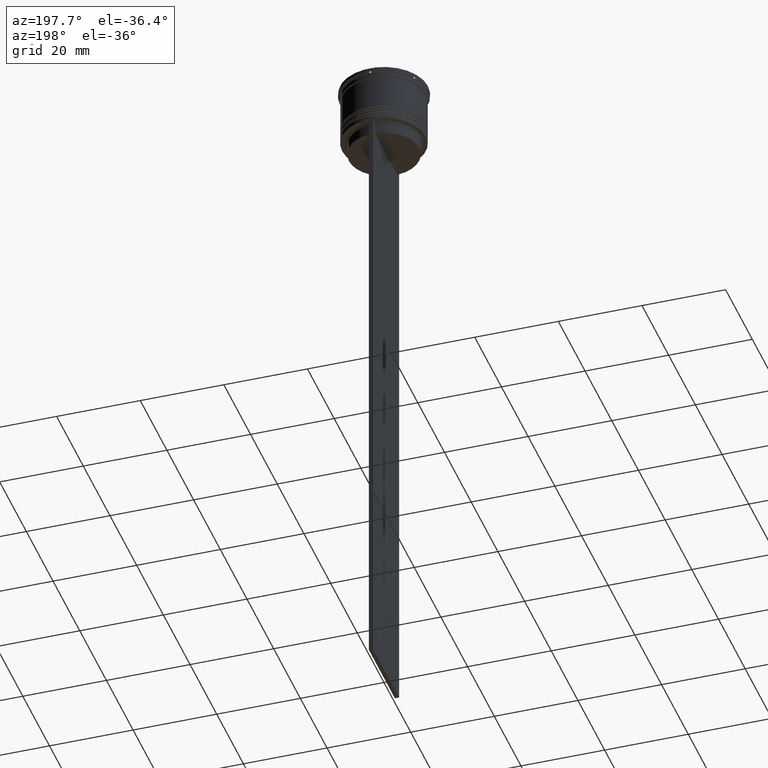
[diagram: clean part render]
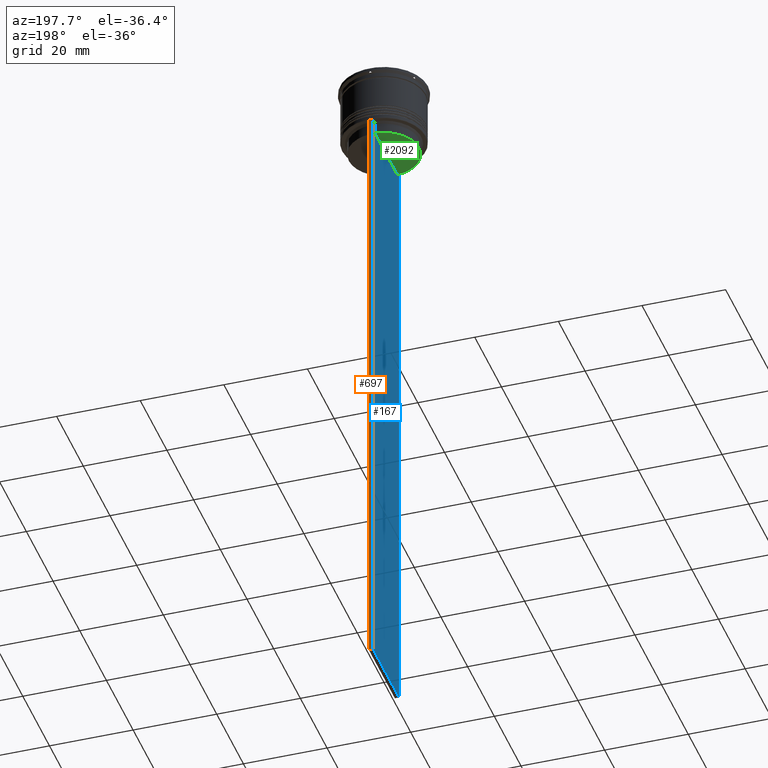
[diagram: same view with three faces highlighted in distinct colors, each labeled with its STEP entity id]
A machine part, auxiliary view with three faces highlighted in distinct colors.
Their STEP definitions:

[orange] entity #697 — the highlighted planar face has unit normal (0, -1, -0).
#35 = ORIENTED_EDGE ( 'NONE', *, *, #214, .F. ) ;
#86 = CARTESIAN_POINT ( 'NONE',  ( -0.5000000000000001110, 9.750000000000001776, -163.9999999999999716 ) ) ;
#169 = DIRECTION ( 'NONE',  ( 0.000000000000000000, 0.000000000000000000, -1.000000000000000000 ) ) ;
#192 = PLANE ( 'NONE',  #1936 ) ;
#207 = CARTESIAN_POINT ( 'NONE',  ( 0.4999999999999998890, 9.750000000000001776, -14.00000000000000178 ) ) ;
#211 = EDGE_CURVE ( 'NONE', #995, #1330, #264, .T. ) ;
#214 = EDGE_CURVE ( 'NONE', #995, #586, #1469, .T. ) ;
#221 = DIRECTION ( 'NONE',  ( -1.000000000000000000, 0.000000000000000000, 0.000000000000000000 ) ) ;
#264 = LINE ( 'NONE', #1261, #640 ) ;
#386 = ORIENTED_EDGE ( 'NONE', *, *, #940, .T. ) ;
#393 = CARTESIAN_POINT ( 'NONE',  ( 0.4999999999999998890, 9.750000000000001776, 5.525624189766635830 ) ) ;
#452 = EDGE_CURVE ( 'NONE', #1330, #1167, #1807, .T. ) ;
#586 = VERTEX_POINT ( 'NONE', #86 ) ;
#640 = VECTOR ( 'NONE', #1495, 1000.000000000000000 ) ;
#697 = ADVANCED_FACE ( 'NONE', ( #796 ), #192, .F. ) ;
#748 = CARTESIAN_POINT ( 'NONE',  ( 0.4999999999999998890, 9.750000000000001776, 5.525624189766635830 ) ) ;
#768 = VECTOR ( 'NONE', #1666, 1000.000000000000000 ) ;
#796 = FACE_OUTER_BOUND ( 'NONE', #1284, .T. ) ;
#835 = CARTESIAN_POINT ( 'NONE',  ( -0.5000000000000001110, 9.750000000000001776, 5.525624189766635830 ) ) ;
#853 = LINE ( 'NONE', #1202, #1044 ) ;
#940 = EDGE_CURVE ( 'NONE', #1167, #586, #853, .T. ) ;
#995 = VERTEX_POINT ( 'NONE', #2471 ) ;
#997 = DIRECTION ( 'NONE',  ( 0.000000000000000000, 0.000000000000000000, -1.000000000000000000 ) ) ;
#1044 = VECTOR ( 'NONE', #221, 1000.000000000000000 ) ;
#1124 = CARTESIAN_POINT ( 'NONE',  ( 0.4999999999999998890, 9.750000000000001776, -163.9999999999999716 ) ) ;
#1167 = VERTEX_POINT ( 'NONE', #1124 ) ;
#1202 = CARTESIAN_POINT ( 'NONE',  ( 0.4999999999999998890, 9.750000000000001776, -163.9999999999999716 ) ) ;
#1225 = VECTOR ( 'NONE', #997, 1000.000000000000000 ) ;
#1261 = CARTESIAN_POINT ( 'NONE',  ( 0.4999999999999998890, 9.750000000000001776, -14.00000000000000178 ) ) ;
#1284 = EDGE_LOOP ( 'NONE', ( #35, #2117, #1690, #386 ) ) ;
#1330 = VERTEX_POINT ( 'NONE', #207 ) ;
#1469 = LINE ( 'NONE', #835, #768 ) ;
#1495 = DIRECTION ( 'NONE',  ( 1.000000000000000000, 0.000000000000000000, 0.000000000000000000 ) ) ;
#1666 = DIRECTION ( 'NONE',  ( 0.000000000000000000, 0.000000000000000000, -1.000000000000000000 ) ) ;
#1690 = ORIENTED_EDGE ( 'NONE', *, *, #452, .T. ) ;
#1788 = DIRECTION ( 'NONE',  ( 0.000000000000000000, -1.000000000000000000, -0.000000000000000000 ) ) ;
#1807 = LINE ( 'NONE', #393, #1225 ) ;
#1936 = AXIS2_PLACEMENT_3D ( 'NONE', #748, #1788, #169 ) ;
#2117 = ORIENTED_EDGE ( 'NONE', *, *, #211, .T. ) ;
#2471 = CARTESIAN_POINT ( 'NONE',  ( -0.5000000000000001110, 9.749999999999998224, -14.00000000000000178 ) ) ;

[blue] entity #167 — the highlighted planar face has unit normal (-1, 0, 0).
#26 = DIRECTION ( 'NONE',  ( 0.000000000000000000, -1.000000000000000000, 0.000000000000000000 ) ) ;
#86 = CARTESIAN_POINT ( 'NONE',  ( -0.5000000000000001110, 9.750000000000001776, -163.9999999999999716 ) ) ;
#130 = CARTESIAN_POINT ( 'NONE',  ( -0.5000000000000001110, -9.749999999999998224, -14.00000000000000178 ) ) ;
#133 = CARTESIAN_POINT ( 'NONE',  ( -0.5000000000000001110, -8.552060194457773434, -14.33334167772667023 ) ) ;
#141 = B_SPLINE_CURVE_WITH_KNOTS ( 'NONE', 3,
 ( #1728, #133, #911, #1928 ),
 .UNSPECIFIED., .F., .F.,
 ( 4, 4 ),
 ( 0.03898465126933130243, 0.03969388910599658260 ),
 .UNSPECIFIED. ) ;
#167 = ADVANCED_FACE ( 'NONE', ( #1630 ), #1451, .T. ) ;
#196 = VECTOR ( 'NONE', #1877, 1000.000000000000000 ) ;
#214 = EDGE_CURVE ( 'NONE', #995, #586, #1469, .T. ) ;
#254 = CARTESIAN_POINT ( 'NONE',  ( -0.5000000000000001110, -9.749999999999998224, -163.9999999999999716 ) ) ;
#277 = ORIENTED_EDGE ( 'NONE', *, *, #1599, .F. ) ;
#282 = VECTOR ( 'NONE', #833, 1000.000000000000000 ) ;
#296 = EDGE_CURVE ( 'NONE', #1696, #586, #2172, .T. ) ;
#332 = B_SPLINE_CURVE_WITH_KNOTS ( 'NONE', 3,
 ( #950, #939, #387, #2539 ),
 .UNSPECIFIED., .F., .F.,
 ( 4, 4 ),
 ( 0.01511546479386908018, 0.01582316445439079997 ),
 .UNSPECIFIED. ) ;
#337 = EDGE_CURVE ( 'NONE', #1840, #2020, #1109, .T. ) ;
#387 = CARTESIAN_POINT ( 'NONE',  ( -0.5000000000000001110, 8.552060201981381837, -14.33334167021640226 ) ) ;
#501 = CARTESIAN_POINT ( 'NONE',  ( -0.5000000000000001110, -8.385105843100616241, -17.00000000000000000 ) ) ;
#523 = ORIENTED_EDGE ( 'NONE', *, *, #214, .T. ) ;
#570 = LINE ( 'NONE', #1117, #2530 ) ;
#586 = VERTEX_POINT ( 'NONE', #86 ) ;
#598 = CARTESIAN_POINT ( 'NONE',  ( -0.5000000000000001110, 8.400000000000003908, -17.00000000000000000 ) ) ;
#617 = DIRECTION ( 'NONE',  ( 0.000000000000000000, -1.000000000000000000, 0.000000000000000000 ) ) ;
#627 = ORIENTED_EDGE ( 'NONE', *, *, #1381, .F. ) ;
#671 = CARTESIAN_POINT ( 'NONE',  ( -0.5000000000000001110, -9.749999999999998224, 5.525624189766635830 ) ) ;
#768 = VECTOR ( 'NONE', #1666, 1000.000000000000000 ) ;
#784 = ORIENTED_EDGE ( 'NONE', *, *, #1660, .F. ) ;
#794 = LINE ( 'NONE', #598, #1316 ) ;
#823 = LINE ( 'NONE', #1619, #282 ) ;
#833 = DIRECTION ( 'NONE',  ( 0.000000000000000000, 0.000000000000000000, -1.000000000000000000 ) ) ;
#835 = CARTESIAN_POINT ( 'NONE',  ( -0.5000000000000001110, 9.750000000000001776, 5.525624189766635830 ) ) ;
#852 = ORIENTED_EDGE ( 'NONE', *, *, #1403, .F. ) ;
#885 = CARTESIAN_POINT ( 'NONE',  ( -0.5000000000000001110, -8.385105843100616241, 0.000000000000000000 ) ) ;
#911 = CARTESIAN_POINT ( 'NONE',  ( -0.5000000000000001110, -8.719005764482790966, -14.16667454151159689 ) ) ;
#922 = CARTESIAN_POINT ( 'NONE',  ( -0.5000000000000001110, -9.749999999999998224, -14.00000000000000178 ) ) ;
#935 = CARTESIAN_POINT ( 'NONE',  ( -0.5000000000000001110, -9.749999999999998224, -163.9999999999999716 ) ) ;
#939 = CARTESIAN_POINT ( 'NONE',  ( -0.5000000000000001110, 8.719005771582351016, -14.16667453442324742 ) ) ;
#943 = ORIENTED_EDGE ( 'NONE', *, *, #1218, .F. ) ;
#950 = CARTESIAN_POINT ( 'NONE',  ( -0.5000000000000001110, 8.885943956609230199, -14.00000000000000178 ) ) ;
#972 = CARTESIAN_POINT ( 'NONE',  ( -0.5000000000000001110, 8.385105843100616241, -17.00000000000000000 ) ) ;
#995 = VERTEX_POINT ( 'NONE', #2471 ) ;
#1086 = VECTOR ( 'NONE', #2549, 1000.000000000000000 ) ;
#1109 = LINE ( 'NONE', #922, #1629 ) ;
#1117 = CARTESIAN_POINT ( 'NONE',  ( -0.5000000000000001110, -9.749999999999998224, 5.525624189766635830 ) ) ;
#1143 = VERTEX_POINT ( 'NONE', #1972 ) ;
#1210 = ORIENTED_EDGE ( 'NONE', *, *, #1679, .F. ) ;
#1217 = LINE ( 'NONE', #1411, #2403 ) ;
#1218 = EDGE_CURVE ( 'NONE', #1754, #1244, #332, .T. ) ;
#1244 = VERTEX_POINT ( 'NONE', #2580 ) ;
#1316 = VECTOR ( 'NONE', #617, 1000.000000000000000 ) ;
#1381 = EDGE_CURVE ( 'NONE', #2184, #2348, #794, .T. ) ;
#1403 = EDGE_CURVE ( 'NONE', #2348, #1143, #2012, .T. ) ;
#1411 = CARTESIAN_POINT ( 'NONE',  ( -0.5000000000000001110, -9.749999999999998224, -14.00000000000000178 ) ) ;
#1451 = PLANE ( 'NONE',  #2477 ) ;
#1469 = LINE ( 'NONE', #835, #768 ) ;
#1599 = EDGE_CURVE ( 'NONE', #1143, #1840, #141, .T. ) ;
#1619 = CARTESIAN_POINT ( 'NONE',  ( -0.5000000000000001110, 8.385105843100616241, 0.000000000000000000 ) ) ;
#1629 = VECTOR ( 'NONE', #2349, 1000.000000000000000 ) ;
#1630 = FACE_OUTER_BOUND ( 'NONE', #2427, .T. ) ;
#1660 = EDGE_CURVE ( 'NONE', #1244, #2184, #823, .T. ) ;
#1666 = DIRECTION ( 'NONE',  ( 0.000000000000000000, 0.000000000000000000, -1.000000000000000000 ) ) ;
#1679 = EDGE_CURVE ( 'NONE', #995, #1754, #1217, .T. ) ;
#1696 = VERTEX_POINT ( 'NONE', #254 ) ;
#1728 = CARTESIAN_POINT ( 'NONE',  ( -0.5000000000000001110, -8.385105843100616241, -14.50000000000000000 ) ) ;
#1754 = VERTEX_POINT ( 'NONE', #1998 ) ;
#1831 = ORIENTED_EDGE ( 'NONE', *, *, #296, .F. ) ;
#1840 = VERTEX_POINT ( 'NONE', #1842 ) ;
#1842 = CARTESIAN_POINT ( 'NONE',  ( -0.5000000000000001110, -8.885943956609230199, -14.00000000000000178 ) ) ;
#1877 = DIRECTION ( 'NONE',  ( -0.000000000000000000, -0.000000000000000000, 1.000000000000000000 ) ) ;
#1925 = DIRECTION ( 'NONE',  ( 0.000000000000000000, 0.000000000000000000, -1.000000000000000000 ) ) ;
#1928 = CARTESIAN_POINT ( 'NONE',  ( -0.5000000000000001110, -8.885943956609230199, -14.00000000000000178 ) ) ;
#1972 = CARTESIAN_POINT ( 'NONE',  ( -0.5000000000000001110, -8.385105843100616241, -14.50000000000000000 ) ) ;
#1973 = EDGE_CURVE ( 'NONE', #2020, #1696, #570, .T. ) ;
#1998 = CARTESIAN_POINT ( 'NONE',  ( -0.5000000000000001110, 8.885943956609230199, -14.00000000000000178 ) ) ;
#2012 = LINE ( 'NONE', #885, #196 ) ;
#2020 = VERTEX_POINT ( 'NONE', #130 ) ;
#2172 = LINE ( 'NONE', #935, #1086 ) ;
#2184 = VERTEX_POINT ( 'NONE', #972 ) ;
#2212 = ORIENTED_EDGE ( 'NONE', *, *, #1973, .F. ) ;
#2282 = DIRECTION ( 'NONE',  ( -1.000000000000000000, 0.000000000000000000, 0.000000000000000000 ) ) ;
#2317 = ORIENTED_EDGE ( 'NONE', *, *, #337, .F. ) ;
#2348 = VERTEX_POINT ( 'NONE', #501 ) ;
#2349 = DIRECTION ( 'NONE',  ( 0.000000000000000000, -1.000000000000000000, 0.000000000000000000 ) ) ;
#2403 = VECTOR ( 'NONE', #26, 1000.000000000000000 ) ;
#2427 = EDGE_LOOP ( 'NONE', ( #943, #1210, #523, #1831, #2212, #2317, #277, #852, #627, #784 ) ) ;
#2446 = DIRECTION ( 'NONE',  ( 0.000000000000000000, 0.000000000000000000, 1.000000000000000000 ) ) ;
#2471 = CARTESIAN_POINT ( 'NONE',  ( -0.5000000000000001110, 9.749999999999998224, -14.00000000000000178 ) ) ;
#2477 = AXIS2_PLACEMENT_3D ( 'NONE', #671, #2282, #2446 ) ;
#2530 = VECTOR ( 'NONE', #1925, 1000.000000000000000 ) ;
#2539 = CARTESIAN_POINT ( 'NONE',  ( -0.5000000000000001110, 8.385105843100616241, -14.50000000000000000 ) ) ;
#2549 = DIRECTION ( 'NONE',  ( 0.000000000000000000, 1.000000000000000000, 0.000000000000000000 ) ) ;
#2580 = CARTESIAN_POINT ( 'NONE',  ( -0.5000000000000001110, 8.385105843100616241, -14.50000000000000000 ) ) ;

[green] entity #2092 — the highlighted planar face has unit normal (0, -0, 1).
#145 = CARTESIAN_POINT ( 'NONE',  ( 0.000000000000000000, 0.000000000000000000, -17.00000000000000000 ) ) ;
#147 = AXIS2_PLACEMENT_3D ( 'NONE', #145, #1752, #1742 ) ;
#222 = DIRECTION ( 'NONE',  ( 1.000000000000000000, 0.000000000000000000, 0.000000000000000000 ) ) ;
#314 = CIRCLE ( 'NONE', #147, 8.400000000000003908 ) ;
#323 = EDGE_CURVE ( 'NONE', #2184, #2348, #314, .T. ) ;
#354 = FACE_OUTER_BOUND ( 'NONE', #990, .T. ) ;
#501 = CARTESIAN_POINT ( 'NONE',  ( -0.5000000000000001110, -8.385105843100616241, -17.00000000000000000 ) ) ;
#598 = CARTESIAN_POINT ( 'NONE',  ( -0.5000000000000001110, 8.400000000000003908, -17.00000000000000000 ) ) ;
#617 = DIRECTION ( 'NONE',  ( 0.000000000000000000, -1.000000000000000000, 0.000000000000000000 ) ) ;
#794 = LINE ( 'NONE', #598, #1316 ) ;
#972 = CARTESIAN_POINT ( 'NONE',  ( -0.5000000000000001110, 8.385105843100616241, -17.00000000000000000 ) ) ;
#990 = EDGE_LOOP ( 'NONE', ( #1048, #1491 ) ) ;
#1048 = ORIENTED_EDGE ( 'NONE', *, *, #323, .F. ) ;
#1131 = CARTESIAN_POINT ( 'NONE',  ( 0.000000000000000000, 8.400000000000003908, -17.00000000000000000 ) ) ;
#1313 = PLANE ( 'NONE',  #1685 ) ;
#1316 = VECTOR ( 'NONE', #617, 1000.000000000000000 ) ;
#1381 = EDGE_CURVE ( 'NONE', #2184, #2348, #794, .T. ) ;
#1491 = ORIENTED_EDGE ( 'NONE', *, *, #1381, .T. ) ;
#1685 = AXIS2_PLACEMENT_3D ( 'NONE', #1131, #1939, #222 ) ;
#1742 = DIRECTION ( 'NONE',  ( 1.000000000000000000, 0.000000000000000000, 0.000000000000000000 ) ) ;
#1752 = DIRECTION ( 'NONE',  ( -0.000000000000000000, -0.000000000000000000, 1.000000000000000000 ) ) ;
#1939 = DIRECTION ( 'NONE',  ( 0.000000000000000000, -0.000000000000000000, 1.000000000000000000 ) ) ;
#2092 = ADVANCED_FACE ( 'NONE', ( #354 ), #1313, .F. ) ;
#2184 = VERTEX_POINT ( 'NONE', #972 ) ;
#2348 = VERTEX_POINT ( 'NONE', #501 ) ;